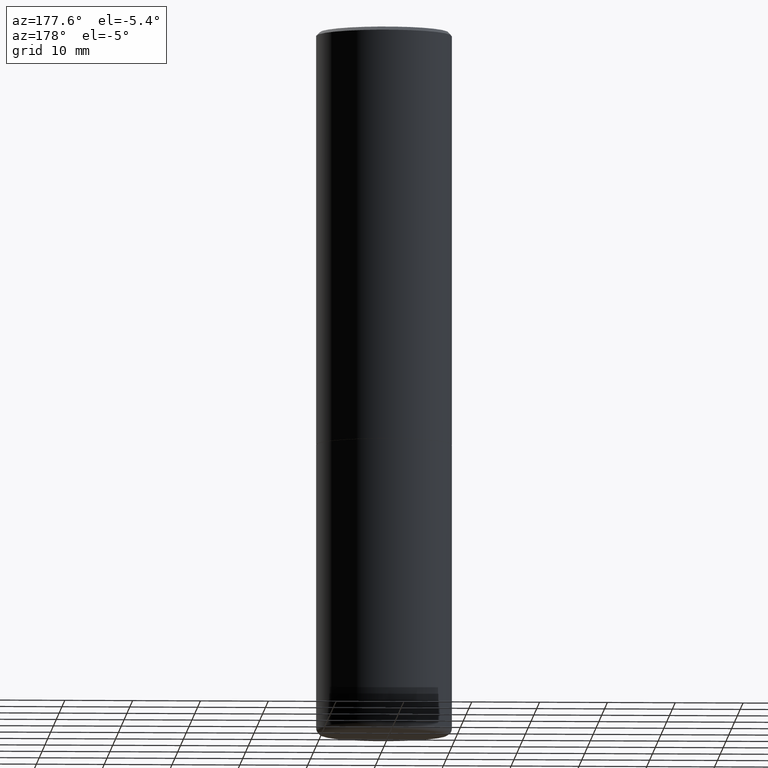
[diagram: clean part render]
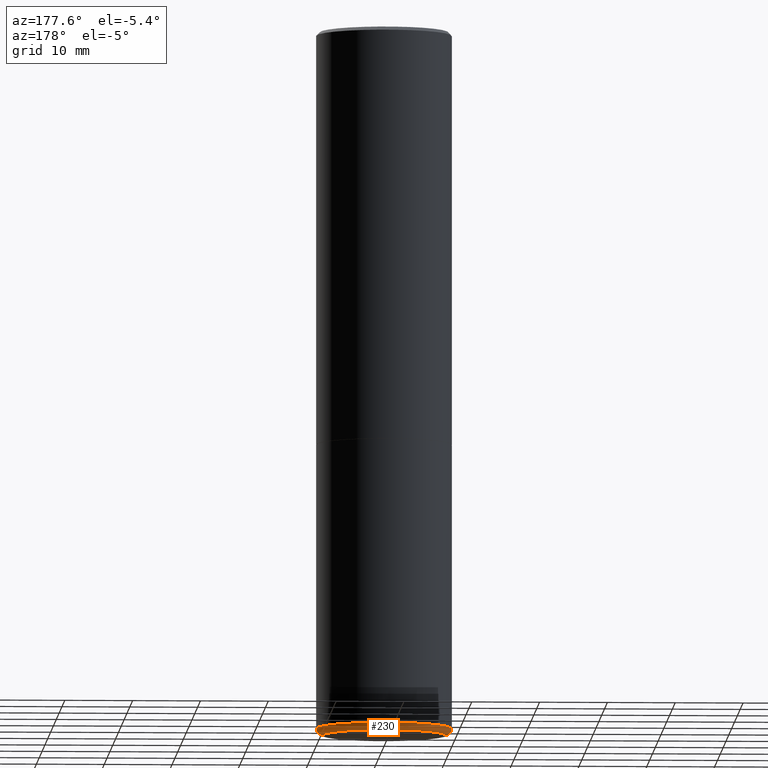
[diagram: same view with one face highlighted and labeled with its STEP entity id]
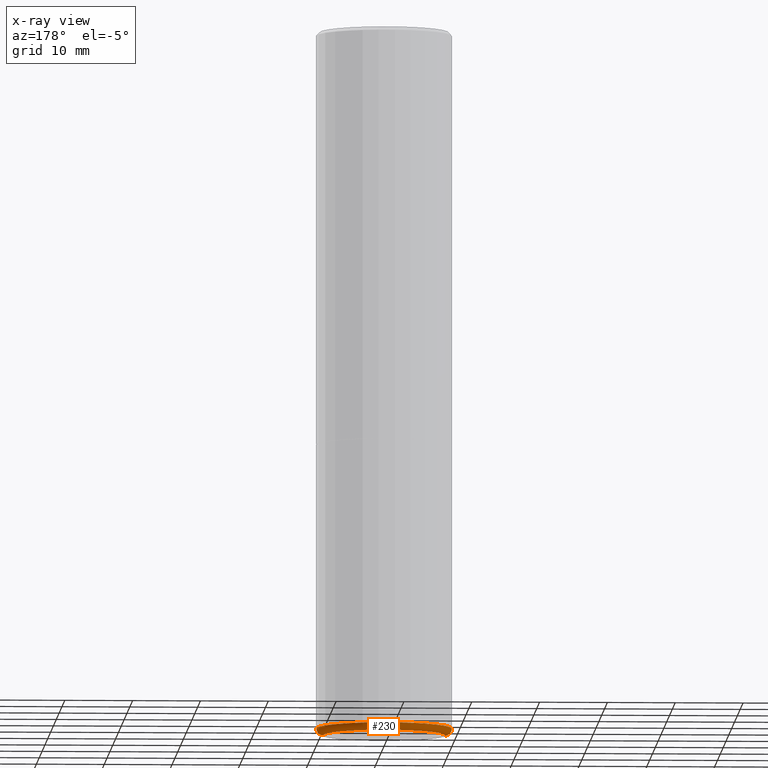
[diagram: x-ray of the same camera — body ghosted, the highlighted face saturated]
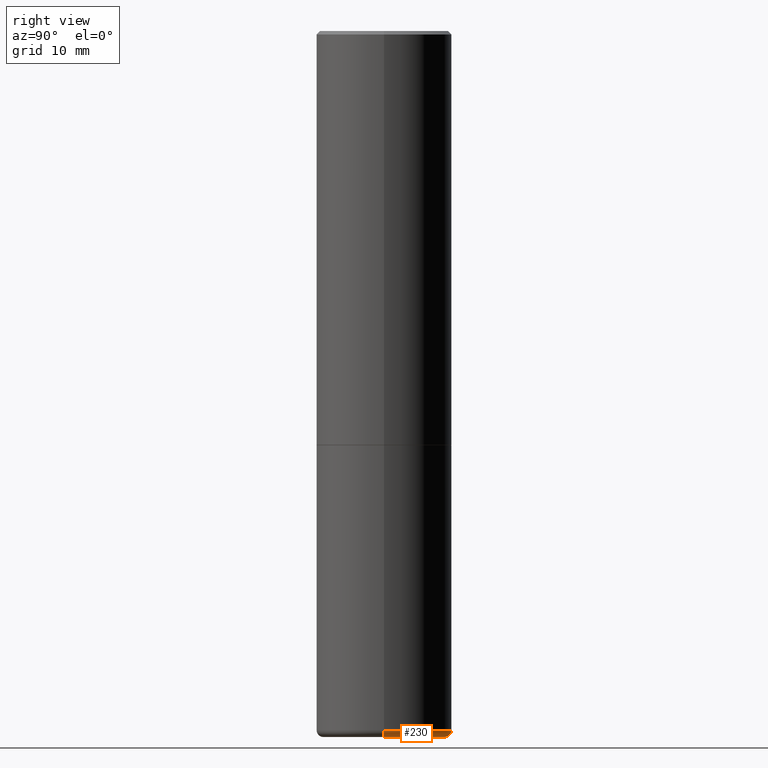
[diagram: same view with one face highlighted and labeled with its STEP entity id]
A machine part, auxiliary view. The second image highlights one B-rep face of the part: STEP entity #230.
The next image is the same camera in x-ray: the body ghosted, the highlighted face saturated — about 0% of this face is hidden behind the body in this view.
A second angle (right view) of the same face is appended — the face is thin or edge-on in the first view.
In plain terms, the highlighted toroidal blend (fillet) surface has major radius 8.9992 mm and minor (blend) radius 1.0008 mm.
Its self-contained STEP definition (entity closure, byte-faithful):
#8 = CARTESIAN_POINT ( 'NONE',  ( 0.3543000000000000038, -1.676993401859750628E-14, -4.094500000000000028 ) ) ;
#14 = DIRECTION ( 'NONE',  ( -2.445468806185136597E-29, 3.491481338843145583E-15, 1.000000000000000000 ) ) ;
#17 = VERTEX_POINT ( 'NONE', #366 ) ;
#24 = VERTEX_POINT ( 'NONE', #311 ) ;
#28 = EDGE_CURVE ( 'NONE', #236, #24, #294, .T. ) ;
#51 = FACE_OUTER_BOUND ( 'NONE', #330, .T. ) ;
#70 = DIRECTION ( 'NONE',  ( 7.105427357601001859E-15, 1.000000000000000000, -3.491481338843145583E-15 ) ) ;
#82 = CIRCLE ( 'NONE', #375, 0.3937000000000000499 ) ;
#110 = EDGE_CURVE ( 'NONE', #135, #17, #82, .T. ) ;
#124 = CARTESIAN_POINT ( 'NONE',  ( 0.3543000000000000038, -1.663236965384708391E-14, -4.055100000000000371 ) ) ;
#129 = DIRECTION ( 'NONE',  ( -2.445468806185136597E-29, 3.491481338843145583E-15, 1.000000000000000000 ) ) ;
#135 = VERTEX_POINT ( 'NONE', #138 ) ;
#138 = CARTESIAN_POINT ( 'NONE',  ( 0.3937000000000001054, -1.690749838334792550E-14, -4.055100000000000371 ) ) ;
#160 = EDGE_CURVE ( 'NONE', #236, #135, #240, .T. ) ;
#162 = AXIS2_PLACEMENT_3D ( 'NONE', #124, #409, #191 ) ;
#167 = DIRECTION ( 'NONE',  ( 1.000000000000000000, -6.982962677686267499E-15, 0.000000000000000000 ) ) ;
#177 = DIRECTION ( 'NONE',  ( -2.445468806185136597E-29, 3.491481338843145583E-15, 1.000000000000000000 ) ) ;
#191 = DIRECTION ( 'NONE',  ( 1.000000000000000000, -6.982962677686267499E-15, 0.000000000000000000 ) ) ;
#225 = AXIS2_PLACEMENT_3D ( 'NONE', #276, #177, #402 ) ;
#230 = ADVANCED_FACE ( 'NONE', ( #51 ), #304, .T. ) ;
#233 = AXIS2_PLACEMENT_3D ( 'NONE', #251, #129, #351 ) ;
#236 = VERTEX_POINT ( 'NONE', #8 ) ;
#240 = CIRCLE ( 'NONE', #162, 0.03940000000000005997 ) ;
#242 = ORIENTED_EDGE ( 'NONE', *, *, #313, .T. ) ;
#251 = CARTESIAN_POINT ( 'NONE',  ( 9.916620555961347550E-29, -1.415830597714284070E-14, -4.055100000000000371 ) ) ;
#276 = CARTESIAN_POINT ( 'NONE',  ( 1.001297202692504215E-28, -1.429587034189326149E-14, -4.094500000000000028 ) ) ;
#280 = AXIS2_PLACEMENT_3D ( 'NONE', #384, #70, #289 ) ;
#289 = DIRECTION ( 'NONE',  ( -1.000000000000000000, 7.105427357601014480E-15, 0.000000000000000000 ) ) ;
#294 = CIRCLE ( 'NONE', #225, 0.3543000000000000038 ) ;
#295 = CIRCLE ( 'NONE', #280, 0.03940000000000005997 ) ;
#296 = CARTESIAN_POINT ( 'NONE',  ( 9.916620555961347550E-29, -1.415830597714284070E-14, -4.055100000000000371 ) ) ;
#304 = TOROIDAL_SURFACE ( 'NONE', #233, 0.3543000000000000038, 0.03940000000000005997 ) ;
#309 = ORIENTED_EDGE ( 'NONE', *, *, #160, .F. ) ;
#311 = CARTESIAN_POINT ( 'NONE',  ( -0.3543000000000000038, -1.156965832777527483E-14, -4.094500000000000028 ) ) ;
#313 = EDGE_CURVE ( 'NONE', #24, #17, #295, .T. ) ;
#330 = EDGE_LOOP ( 'NONE', ( #339, #242, #391, #309 ) ) ;
#339 = ORIENTED_EDGE ( 'NONE', *, *, #28, .T. ) ;
#351 = DIRECTION ( 'NONE',  ( 1.000000000000000000, -6.982962677686266711E-15, 4.883557194083112340E-29 ) ) ;
#366 = CARTESIAN_POINT ( 'NONE',  ( -0.3937000000000001054, -1.136089922645532513E-14, -4.055100000000000371 ) ) ;
#375 = AXIS2_PLACEMENT_3D ( 'NONE', #296, #14, #167 ) ;
#384 = CARTESIAN_POINT ( 'NONE',  ( -0.3543000000000000038, -1.164085306434480532E-14, -4.055100000000000371 ) ) ;
#391 = ORIENTED_EDGE ( 'NONE', *, *, #110, .F. ) ;
#402 = DIRECTION ( 'NONE',  ( 1.000000000000000000, -6.982962677686266711E-15, 0.000000000000000000 ) ) ;
#409 = DIRECTION ( 'NONE',  ( -6.982962677686266711E-15, -1.000000000000000000, 3.491481338843145583E-15 ) ) ;